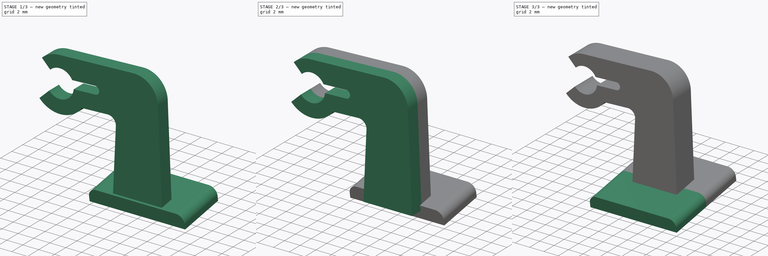
[diagram: build sequence overview — one tinted view per stage of 3, left to right]
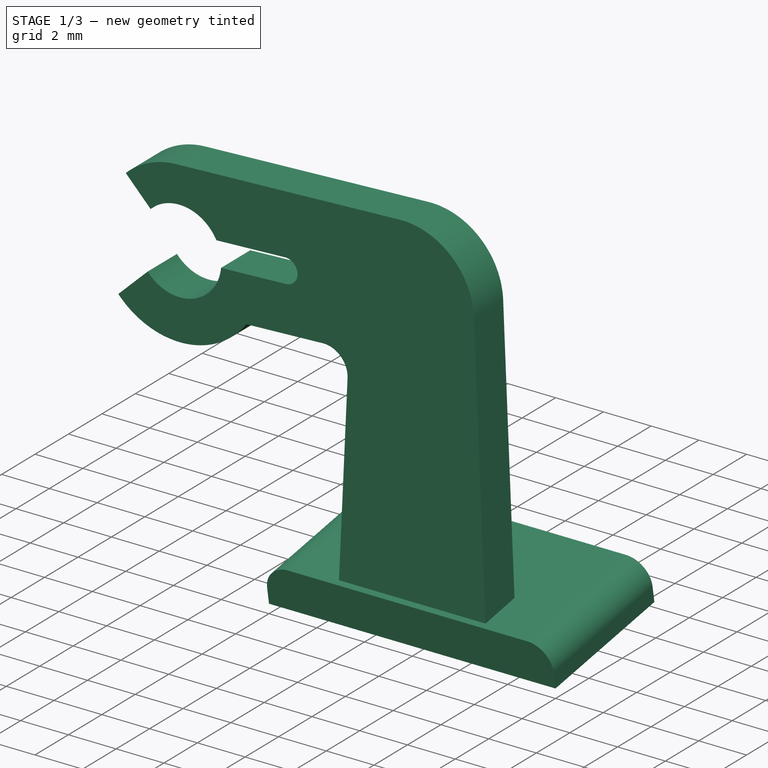
[diagram: stage 1 of 3 — iso view after this stage's code; geometry added in this stage tinted green]
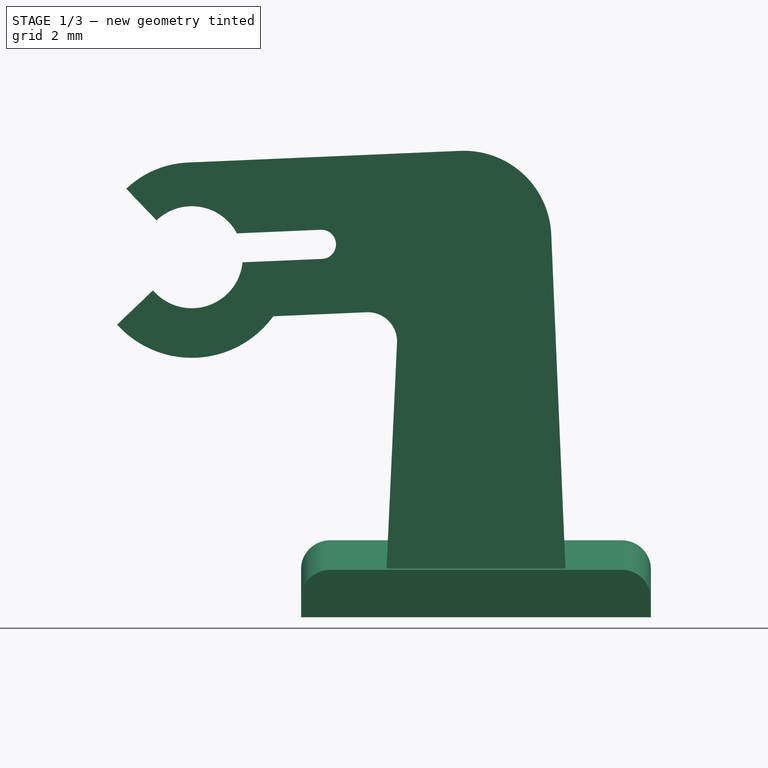
[diagram: stage 1 of 3 — front view after this stage's code; geometry added in this stage tinted green]
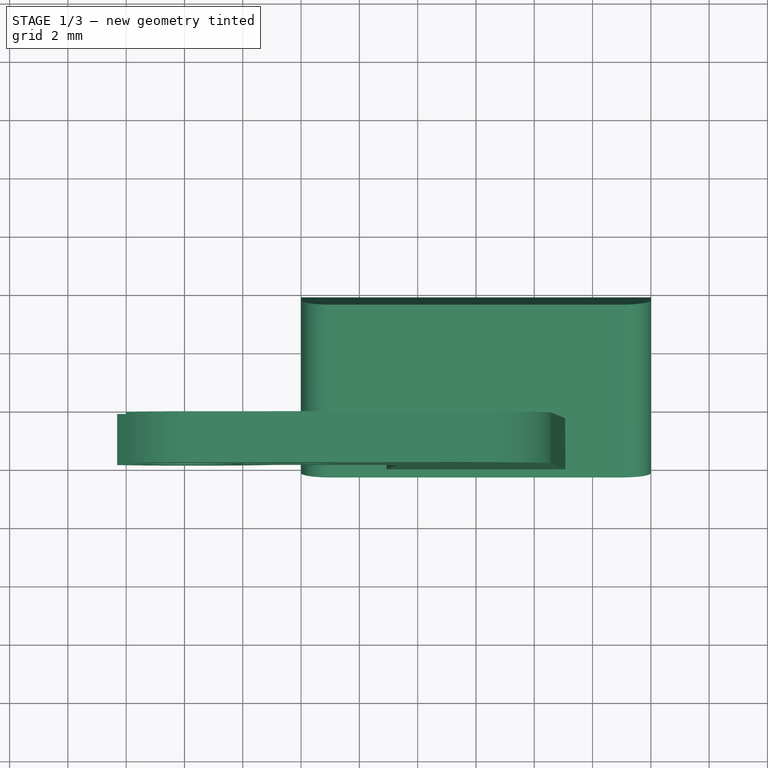
[diagram: stage 1 of 3 — top view after this stage's code; geometry added in this stage tinted green]
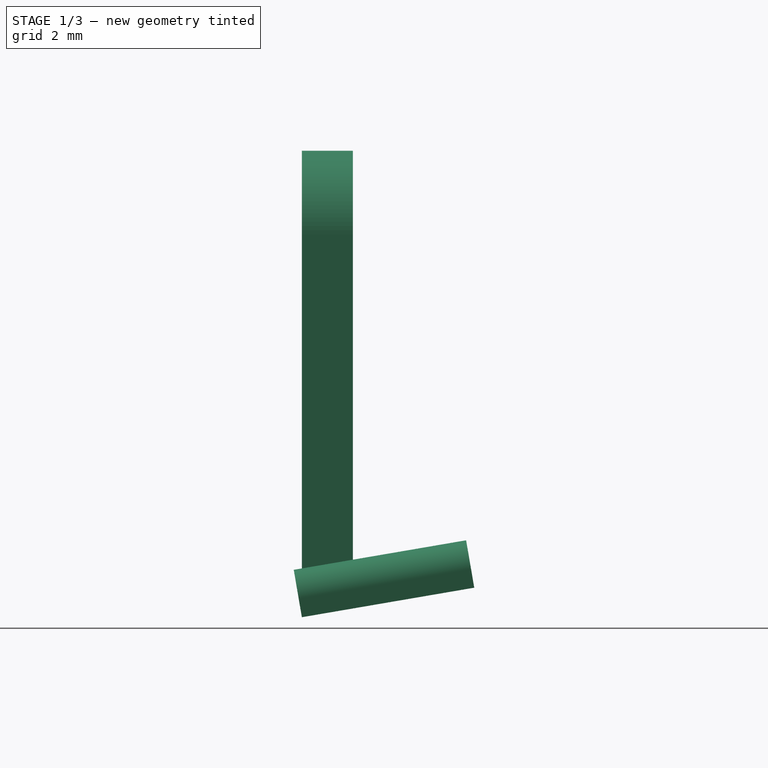
[diagram: stage 1 of 3 — right view after this stage's code; geometry added in this stage tinted green]
FCSTD DOCUMENT  (FreeCAD 0.22R34729 (Git))
Label: scharnier2
License: All rights reserved
LicenseURL: https://en.wikipedia.org/wiki/All_rights_reserved
objects: Sketcher::SketchObject×3, PartDesign::Pad×2, PartDesign::Mirrored×2, PartDesign::Pocket×1, PartDesign::Body×1
note: 12 computed .brp shape members not serialized (recipe doc carries the construction recipe); baked Part::Feature solids carry a one-line shape summary decoded from their .brp

FEATURE [Sketcher::SketchObject] Sketch
  AttachmentOffset = pos=(0,0,0) rot=(1,0,0;0.169646rad)
  FullyConstrained = true
  MapMode = 5
  Placement = pos=(0,0,0) rot=(1,0,0;1.74044rad)
  Support = -> [XZ_Plane]
  expr: Constraints[13] = 2.95 - 1.3
  sketch-geometry (6):
    g0: LineSegment StartX=-6 StartY=0 StartZ=0 EndX=6 EndY=0 EndZ=0
    g1: LineSegment StartX=6 StartY=0 StartZ=0 EndX=6 EndY=0.65 EndZ=0
    g2: ArcOfCircle CenterX=5 CenterY=0.65 CenterZ=0 NormalX=0 NormalY=0 NormalZ=1 AngleXU=0 Radius=1 StartAngle=0 EndAngle=1.5708
    g3: LineSegment StartX=5 StartY=1.65 StartZ=0 EndX=-5 EndY=1.65 EndZ=0
    g4: ArcOfCircle CenterX=-5 CenterY=0.65 CenterZ=0 NormalX=0 NormalY=0 NormalZ=1 AngleXU=0 Radius=1 StartAngle=1.5708 EndAngle=3.14159
    g5: LineSegment StartX=-6 StartY=0.65 StartZ=0 EndX=-6 EndY=0 EndZ=0
  constraints (16):
    c: Coincident(g0,g1)
    c: Vertical(g1)
    c: Tangent(g1,g2) = -1.5708
    c: Horizontal(g3)
    c: Tangent(g3,g4) = -1.5708
    c: Coincident(g4,g5)
    c: Coincident(g5,g0)
    c: Vertical(g5)
    c: Radius(g4) = 1
    c: Radius(g2) = 1
    c: Tangent(g5,g4,g4) = -1.5708
    c: Tangent(g2,g3) = -1.5708
    c: DistanceX(g0,g0) = 12
    c: DistanceY(g0,g2) = 1.65
    c: Symmetric(g0,g0,g-1)
    c: Horizontal(g0)
FEATURE [PartDesign::Pad] Pad  label="base"
  Direction = (0,-0.985645,-0.168833)
  Length = 6
  Length2 = 10
  Placement = pos=(0,0,0) rot=(1,0,0;1.5708rad)
  Profile = -> Sketch
  ReferenceAxis = -> Sketch [N_Axis]
  Reversed = true
  Type = 0
  expr: Length = 6
FEATURE [Sketcher::SketchObject] Sketch003
  ExternalGeometry = -> [Sketch]
  FullyConstrained = false
  MapMode = 5
  Placement = pos=(0,0,0) rot=(1,0,0;1.5708rad)
  Support = -> [XZ_Plane]
  sketch-geometry (26):
    g0: LineSegment StartX=-3.1 StartY=0.970213 StartZ=0 EndX=3.1 EndY=0.970213 EndZ=0
    g1: LineSegment StartX=3.1 StartY=0.970213 StartZ=0 EndX=2.5832 EndY=13.1301 EndZ=0
    g2: ArcOfCircle CenterX=-0.414092 CenterY=13.0028 CenterZ=0 NormalX=0 NormalY=0 NormalZ=1 AngleXU=0 Radius=3 StartAngle=0.0424745 EndAngle=1.61365
    g3: LineSegment StartX=-0.542624 StartY=16 StartZ=0 EndX=-9.8884 EndY=15.5992 EndZ=0
    g4: LineSegment StartX=-3.1 StartY=0.970213 StartZ=0 EndX=-2.70899 EndY=9.4171 EndZ=0
    g5: ArcOfCircle CenterX=-3.70792 CenterY=9.46334 CenterZ=0 NormalX=0 NormalY=0 NormalZ=1 AngleXU=0 Radius=1 StartAngle=6.23693 EndAngle=7.89684
    g6: LineSegment StartX=-3.75077 StartY=10.4624 StartZ=0 EndX=-6.9547 EndY=10.325 EndZ=0
    g7: ArcOfCircle CenterX=-9.74908 CenterY=12.3504 CenterZ=0 NormalX=0 NormalY=0 NormalZ=1 AngleXU=0 Radius=3.4512 StartAngle=3.87611 EndAngle=5.656
    g8: LineSegment StartX=-12.3104 StartY=10.0373 StartZ=0 EndX=-11.0804 EndY=11.2146 EndZ=0
    g9: ArcOfCircle CenterX=-9.74908 CenterY=12.3504 CenterZ=0 NormalX=0 NormalY=0 NormalZ=1 AngleXU=0 Radius=3.25179 StartAngle=1.61365 EndAngle=2.33431
    g10: LineSegment StartX=-11.9976 StartY=14.6995 StartZ=0 EndX=-10.9592 EndY=13.6146 EndZ=0
    g11: ArcOfCircle CenterX=-9.74908 CenterY=12.3504 CenterZ=0 NormalX=0 NormalY=0 NormalZ=1 AngleXU=0 Radius=1.75 StartAngle=3.84789 EndAngle=6.18319
    g12: ArcOfCircle CenterX=-5.30291 CenterY=12.7926 CenterZ=0 NormalX=0 NormalY=0 NormalZ=1 AngleXU=0 Radius=0.50046 StartAngle=4.75525 EndAngle=7.89684
    g13: LineSegment StartX=-5.28147 StartY=12.2926 StartZ=0 EndX=-8.00783 EndY=12.1757 EndZ=0
    g14: ArcOfCircle CenterX=-9.74908 CenterY=12.3504 CenterZ=0 NormalX=0 NormalY=0 NormalZ=1 AngleXU=0 Radius=1.75 StartAngle=0.486898 EndAngle=2.33431
    g15: Circle CenterX=-9.74908 CenterY=12.3504 CenterZ=0 NormalX=0 NormalY=0 NormalZ=1 AngleXU=0 Radius=1.75
    g16: LineSegment StartX=-8.20245 StartY=13.1692 StartZ=0 EndX=-5.32436 EndY=13.2926 EndZ=0
    g17: GeomPoint X=-9.74908 Y=8.89922 Z=0
    g18: GeomPoint X=2.74101 Y=9.4171 Z=0
    g19: GeomPoint X=-3.75077 Y=15.8624 Z=0
    g20: GeomPoint X=-4.80245 Y=12.7926 Z=0
    g21: GeomPoint X=2.59755 Y=12.7926 Z=0
    g22: LineSegment StartX=-11.9976 StartY=14.6995 StartZ=0 EndX=-9.74908 EndY=12.3504 EndZ=0
    g23: GeomPoint X=-9.74908 Y=14.1004 Z=0
    g24: LineSegment StartX=-6.77045 StartY=15.7329 StartZ=0 EndX=-6.66334 EndY=13.2352 EndZ=0
    g25: GeomPoint X=0 Y=0.970213 Z=0
  constraints (59):
    c: Coincident(g0,g1)
    c: Tangent(g1,g2) = -1.5708
    c: Tangent(g2,g3) = -1.5708
    c: Coincident(g0,g4)
    c: Tangent(g4,g5) = -1.5708
    c: Tangent(g5,g6) = -1.5708
    c: Coincident(g8,g7)
    c: Tangent(g9,g3) = -1.5708
    c: Coincident(g10,g9)
    c: Coincident(g11,g7)
    c: Coincident(g11,g8)
    c: Coincident(g13,g11)
    c: Coincident(g14,g9)
    c: Coincident(g14,g10)
    c: Coincident(g7,g9)
    c: Coincident(g6,g7)
    c: Coincident(g15,g7)
    c: Diameter(g15) = 3.5
    c: PointOnObject(g14,g15)
    c: PointOnObject(g11,g15)
    c: DistanceY(g8,g10) = 2.4
    c: Coincident(g16,g14)
    c: Tangent(g16,g12) = 1.5708
    c: Tangent(g13,g12) = 1.5708
    c: PointOnObject(g17,g7)
    c: Vertical(g17,g7)
    c: DistanceY(g17,g3) = 6.7
    c: DistanceX(g0,g0) = 6.2
    c: PointOnObject(g18,g1)
    c: Horizontal(g4,g18)
    c: DistanceX(g4,g18) = 5.45
    c: Symmetric(g0,g0,g-2)
    c: PointOnObject(g19,g3)
    c: Vertical(g19,g5)
    c: DistanceY(g5,g19) = 5.4
    c: PointOnObject(g20,g12)
    c: PointOnObject(g21,g1)
    c: Horizontal(g20,g21)
    c: Horizontal(g21,g12)
    c: DistanceX(g20,g21) = 7.4
    c: DistanceY(g12,g12) = 1
    c: Coincident(g22,g9)
    c: Coincident(g22,g7)
    c: PointOnObject(g10,g22)
    c: PointOnObject(g23,g14)
    c: Vertical(g23,g7)
    c: Parallel(g3,g6)
    c: Parallel(g16,g3)
    c: Parallel(g13,g6)
    c: Radius(g2) = 3
    c: Radius(g5) = 1
    c: DistanceX(g14,g20) = 3.4
    c: PointOnObject(g24,g3)
    c: PointOnObject(g24,g16)
    c: Perpendicular(g3,g24)
    c: Distance(g24,g24) = 2.5
    c: Perpendicular(g10,g8)
    c: PointOnObject(g25,g0)
    c: DistanceY(g2) = 16
FEATURE [PartDesign::Pad] Pad002
  BaseFeature = -> Pad
  Direction = (0,-1,2e-16)
  Length = 1.75
  Length2 = 10
  Placement = pos=(0,0,0) rot=(1,0,0;1.5708rad)
  Profile = -> Sketch003
  ReferenceAxis = -> Sketch003 [N_Axis]
  Reversed = true
  Type = 0
  expr: Length = 3.5 / 2
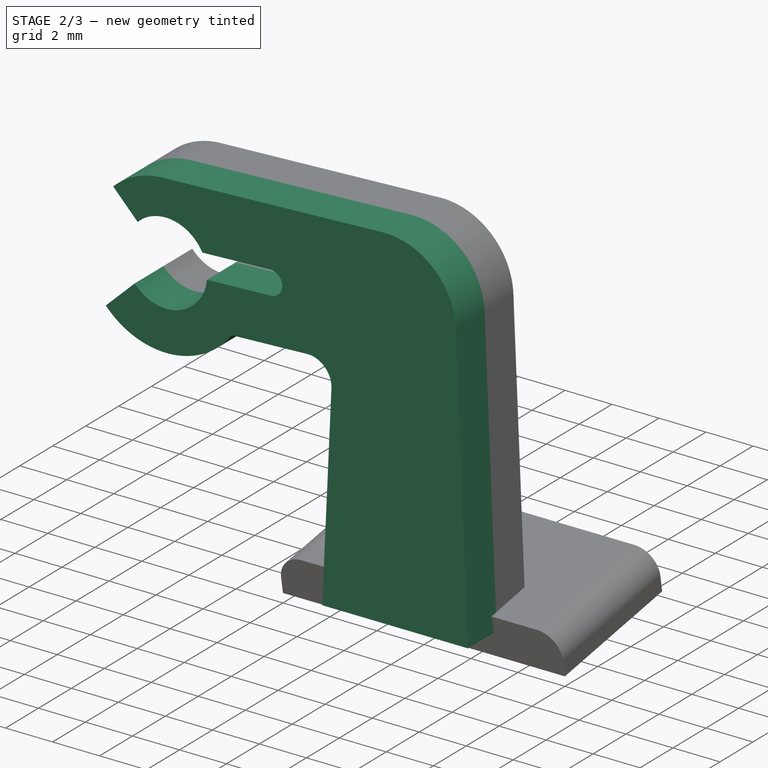
[diagram: stage 2 of 3 — iso view after this stage's code; geometry added in this stage tinted green]
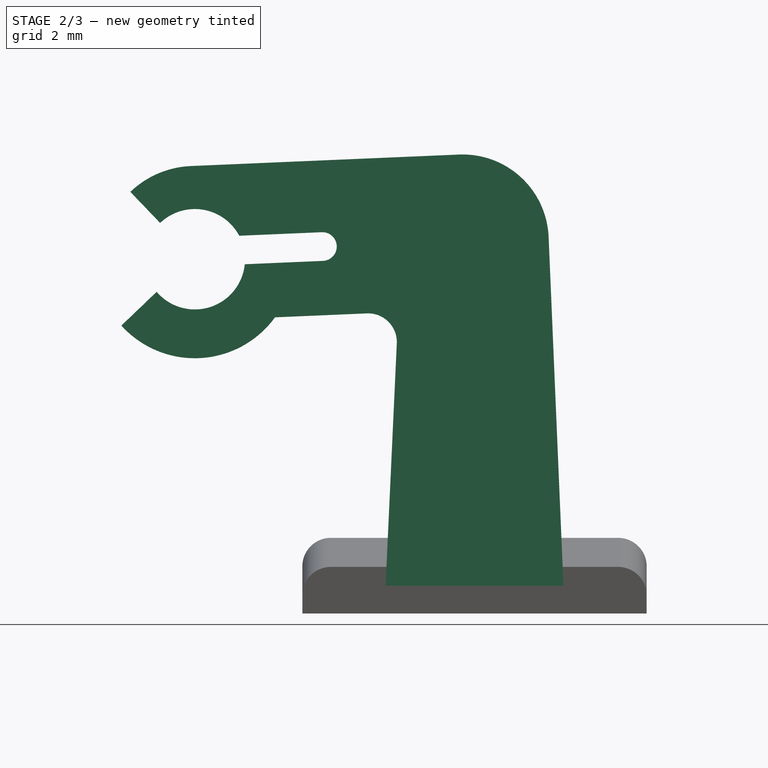
[diagram: stage 2 of 3 — front view after this stage's code; geometry added in this stage tinted green]
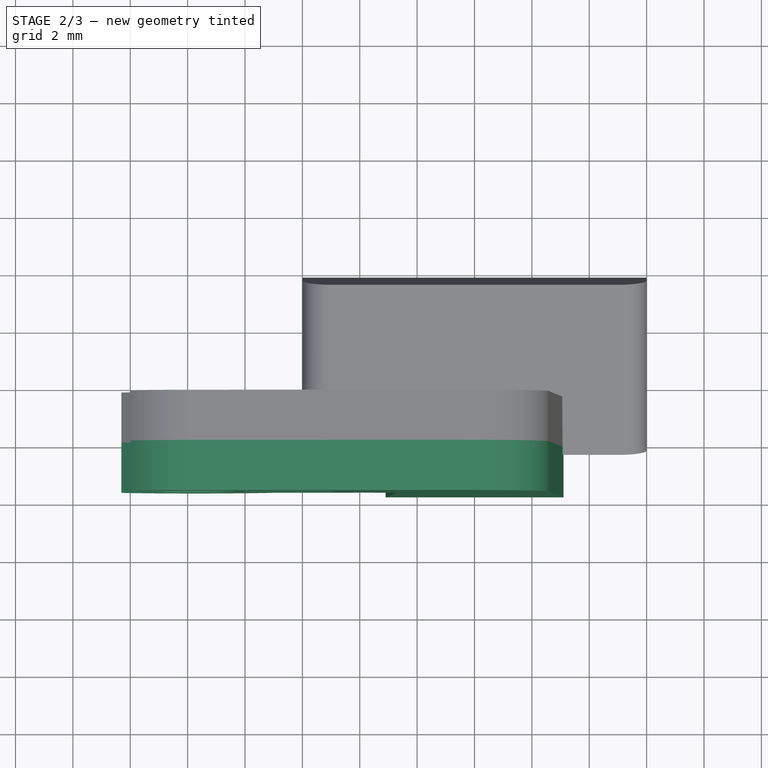
[diagram: stage 2 of 3 — top view after this stage's code; geometry added in this stage tinted green]
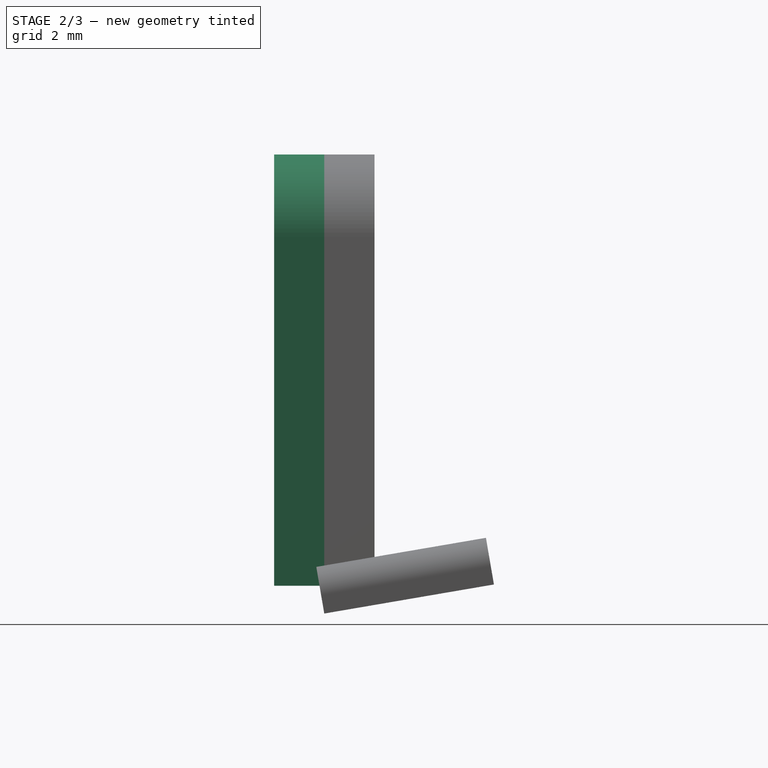
[diagram: stage 2 of 3 — right view after this stage's code; geometry added in this stage tinted green]
FEATURE [PartDesign::Mirrored] Mirrored
  BaseFeature = -> Pad002
  MirrorPlane = -> XZ_Plane
  Originals = -> [Pad002]
  Placement = pos=(0,0,0) rot=(1,0,0;1.5708rad)
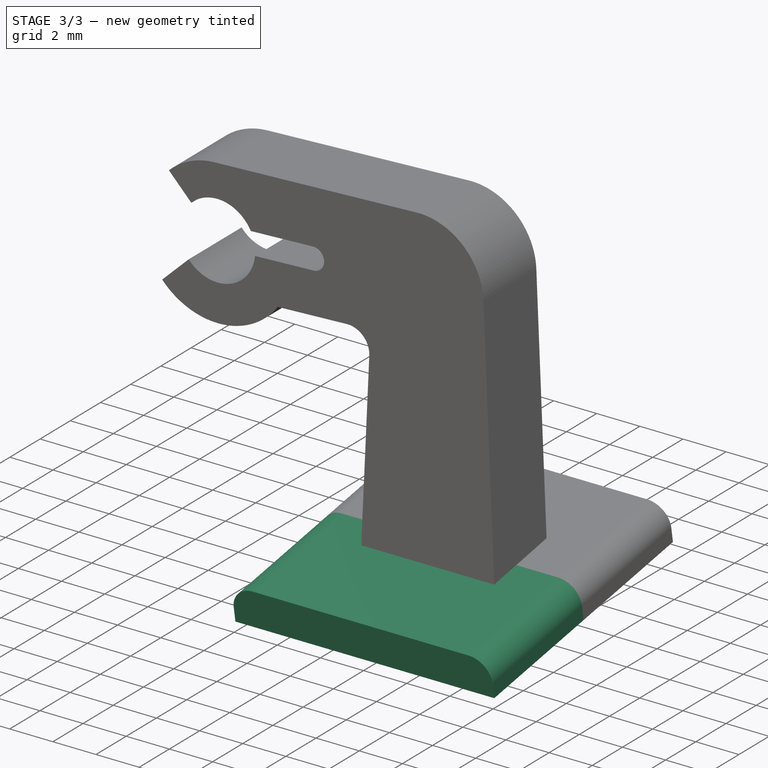
[diagram: stage 3 of 3 — iso view after this stage's code; geometry added in this stage tinted green]
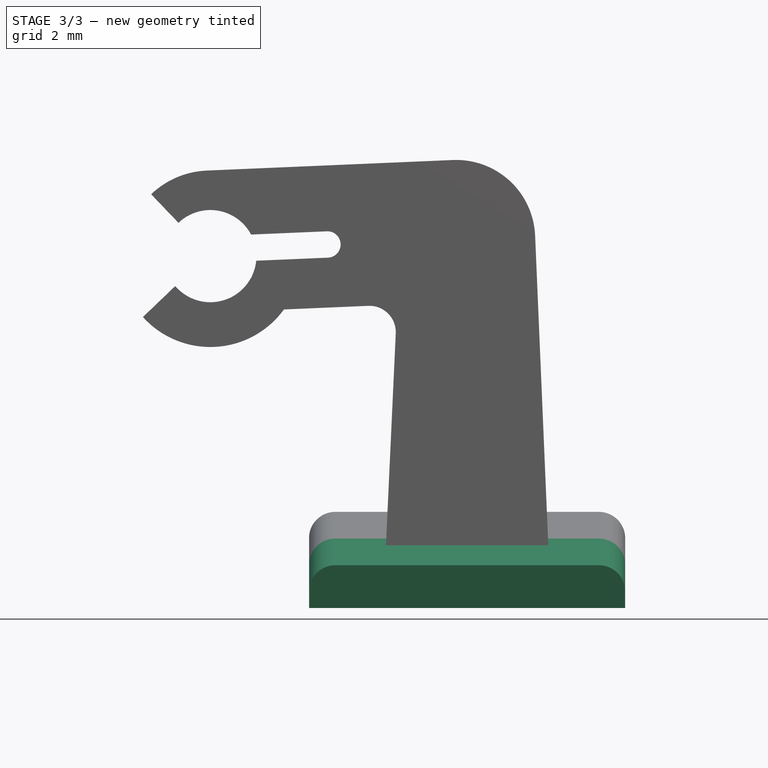
[diagram: stage 3 of 3 — front view after this stage's code; geometry added in this stage tinted green]
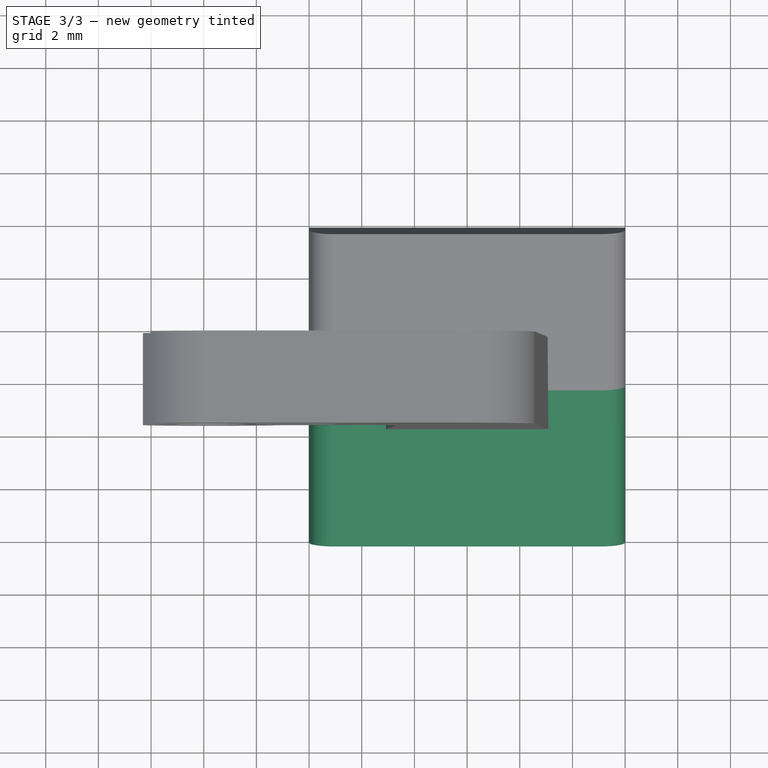
[diagram: stage 3 of 3 — top view after this stage's code; geometry added in this stage tinted green]
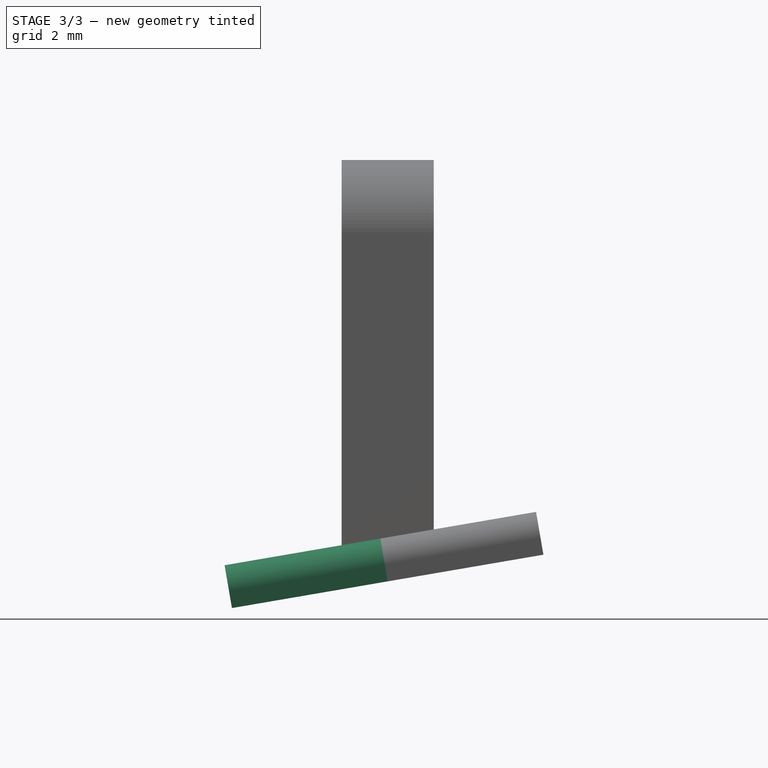
[diagram: stage 3 of 3 — right view after this stage's code; geometry added in this stage tinted green]
FEATURE [PartDesign::Mirrored] Mirrored001
  BaseFeature = -> Mirrored
  MirrorPlane = -> Mirrored [Face4]
  Originals = -> [Pad]
  Placement = pos=(0,0,0) rot=(1,0,0;1.5708rad)
FEATURE [Sketcher::SketchObject] Sketch004
  FullyConstrained = true
  MapMode = 5
  Support = -> [XY_Plane]
  sketch-geometry (1):
    g0: Circle CenterX=0 CenterY=0 CenterZ=0 NormalX=0 NormalY=0 NormalZ=1 AngleXU=0 Radius=0.9
  constraints (2):
    c: Coincident(g0,g-1)
    c: Diameter(g0) = 1.8
FEATURE [PartDesign::Pocket] Pocket
  BaseFeature = -> Mirrored001
  Direction = (0,0,-1)
  Length = 16
  Length2 = 5
  Midplane = true
  Placement = pos=(0,0,0) rot=(1,0,0;1.5708rad)
  Profile = -> Sketch004
  ReferenceAxis = -> Sketch004 [N_Axis]
  Type = 0
FEATURE [PartDesign::Body] Body  label="Körper"
  Group = -> [Sketch,Pad,Sketch003,Pad002,Mirrored,Mirrored001,Sketch004,Pocket]
  Origin = -> Origin
  Tip = -> Pocket
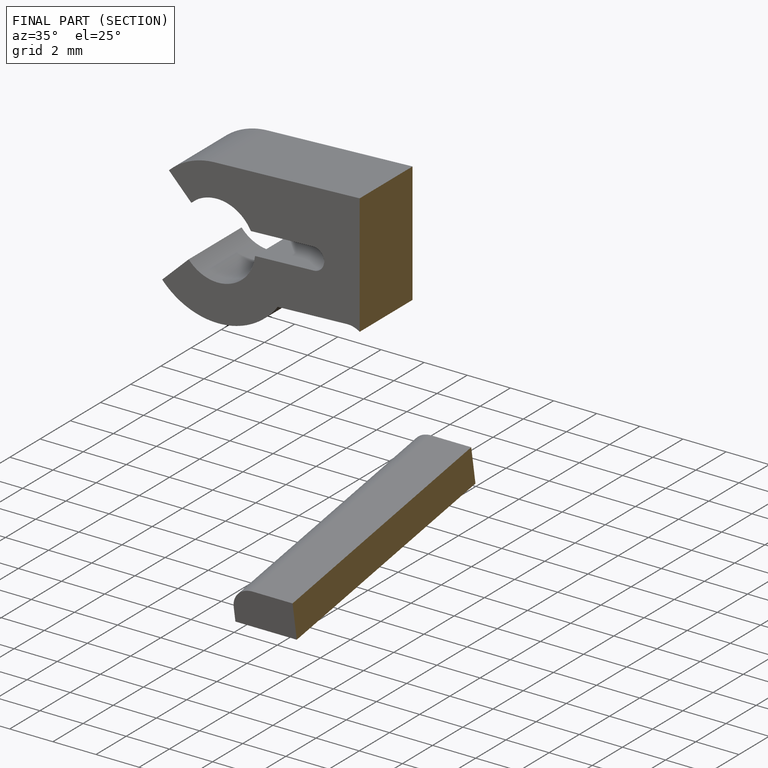
[diagram: finished part — half-section view (interior)]
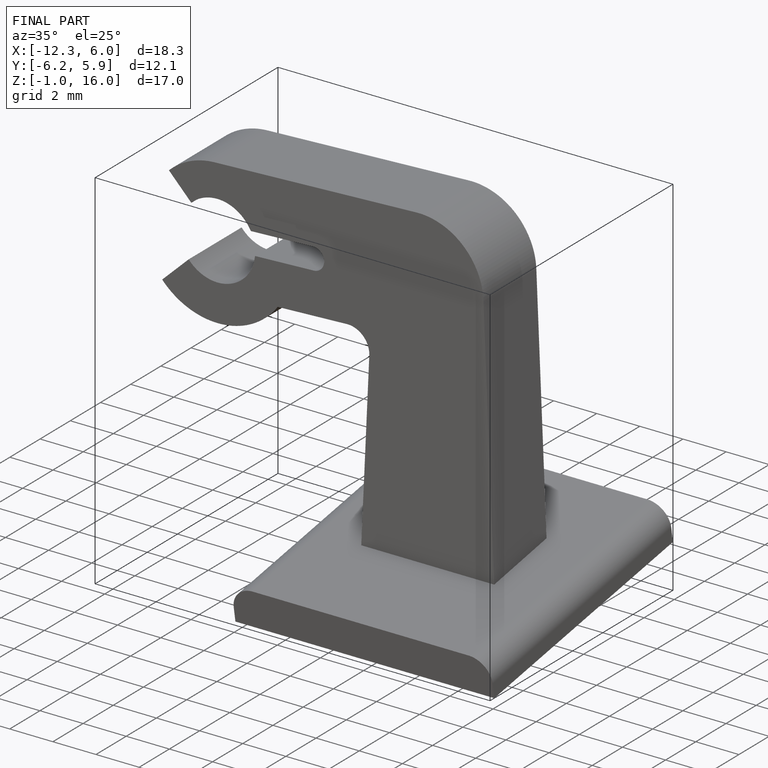
[diagram: finished part — iso view with bounding-box wireframe]
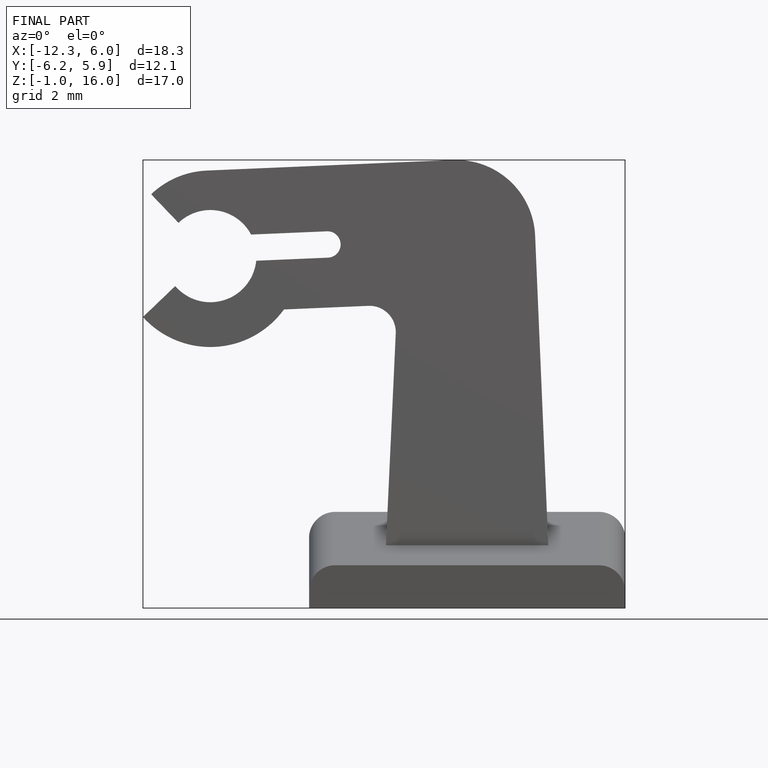
[diagram: finished part — front view with bounding-box wireframe]
